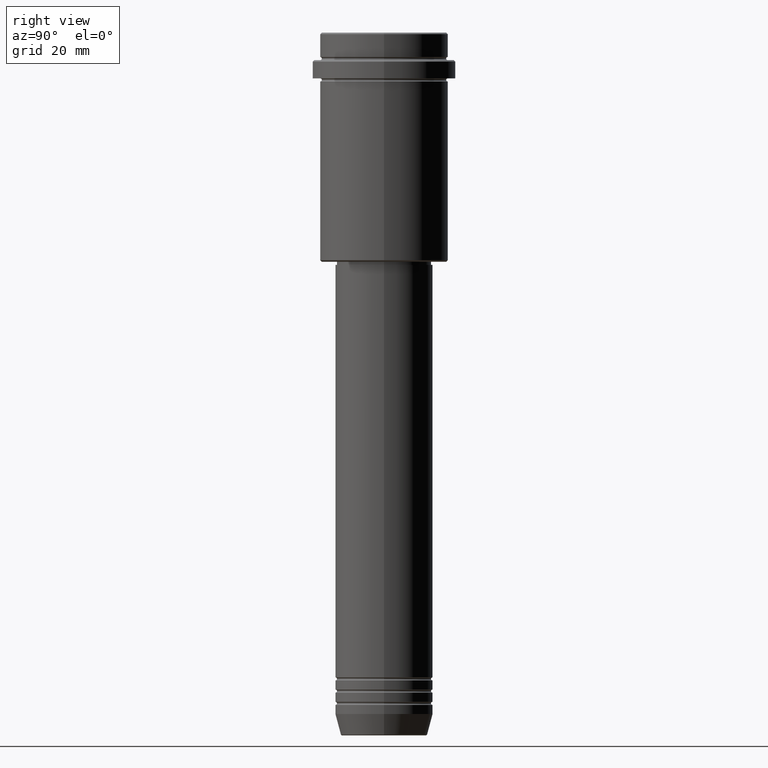
[diagram: clean part render]
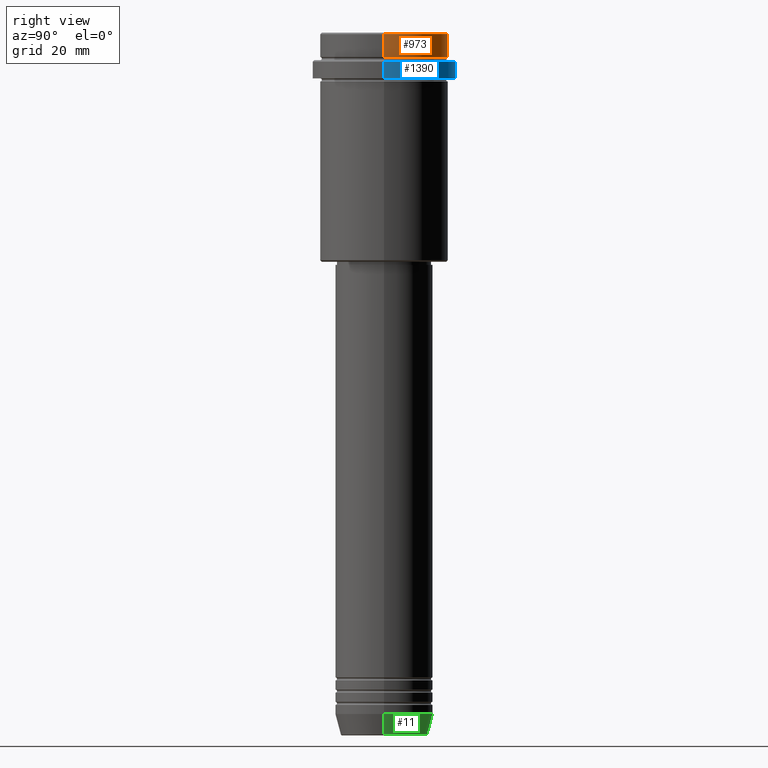
[diagram: same view with three faces highlighted in distinct colors, each labeled with its STEP entity id]
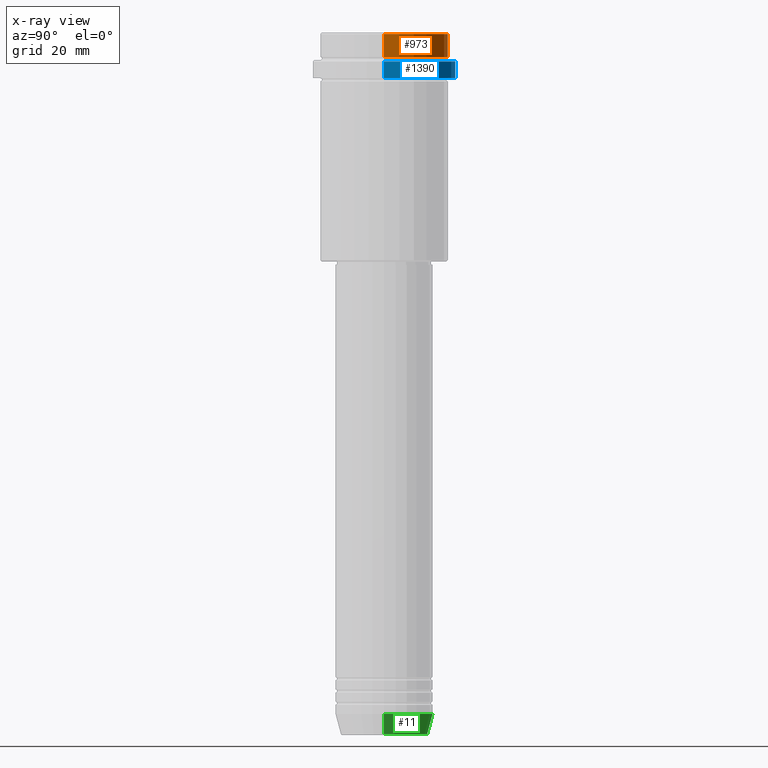
[diagram: x-ray of the same camera — body ghosted, the three highlighted faces saturated]
A machine part, right view with three faces highlighted in distinct colors.
The next image is the same camera in x-ray (body ghosted, the three faces saturated) — at least one of them is partly hidden behind the body in this view.
Their STEP definitions:

[orange] entity #973 — the highlighted cylindrical surface (partial cylindrical patch) has radius 21 mm, axis along (-0, -0, 1).
#72 = ORIENTED_EDGE ( 'NONE', *, *, #907, .T. ) ;
#133 = DIRECTION ( 'NONE',  ( 1.000000000000000000, 0.000000000000000000, 0.000000000000000000 ) ) ;
#146 = DIRECTION ( 'NONE',  ( -0.000000000000000000, -0.000000000000000000, 1.000000000000000000 ) ) ;
#159 = EDGE_CURVE ( 'NONE', #1165, #651, #1196, .T. ) ;
#332 = ORIENTED_EDGE ( 'NONE', *, *, #1033, .F. ) ;
#335 = CARTESIAN_POINT ( 'NONE',  ( 20.99999999999999645, 0.000000000000000000, -0.5000000000000073275 ) ) ;
#357 = DIRECTION ( 'NONE',  ( 1.000000000000000000, 0.000000000000000000, 0.000000000000000000 ) ) ;
#409 = VERTEX_POINT ( 'NONE', #335 ) ;
#460 = CARTESIAN_POINT ( 'NONE',  ( 20.99999999999999645, 0.000000000000000000, -7.999999999999998224 ) ) ;
#464 = CARTESIAN_POINT ( 'NONE',  ( 0.000000000000000000, 0.000000000000000000, 0.000000000000000000 ) ) ;
#475 = DIRECTION ( 'NONE',  ( -0.000000000000000000, -0.000000000000000000, 1.000000000000000000 ) ) ;
#493 = DIRECTION ( 'NONE',  ( 0.000000000000000000, 0.000000000000000000, -1.000000000000000000 ) ) ;
#551 = EDGE_CURVE ( 'NONE', #1316, #409, #902, .T. ) ;
#558 = AXIS2_PLACEMENT_3D ( 'NONE', #1125, #493, #133 ) ;
#559 = VECTOR ( 'NONE', #475, 1000.000000000000000 ) ;
#569 = CARTESIAN_POINT ( 'NONE',  ( -20.99999999999999645, 2.571758278209441267E-15, -7.999999999999998224 ) ) ;
#651 = VERTEX_POINT ( 'NONE', #569 ) ;
#664 = CARTESIAN_POINT ( 'NONE',  ( 20.99999999999999645, 0.000000000000000000, 0.000000000000000000 ) ) ;
#734 = CARTESIAN_POINT ( 'NONE',  ( 0.000000000000000000, 0.000000000000000000, -7.999999999999998224 ) ) ;
#779 = LINE ( 'NONE', #841, #1405 ) ;
#804 = LINE ( 'NONE', #664, #559 ) ;
#841 = CARTESIAN_POINT ( 'NONE',  ( -20.99999999999999645, 2.571758278209441267E-15, 0.000000000000000000 ) ) ;
#887 = ORIENTED_EDGE ( 'NONE', *, *, #159, .T. ) ;
#902 = CIRCLE ( 'NONE', #558, 20.99999999999999645 ) ;
#907 = EDGE_CURVE ( 'NONE', #651, #1316, #779, .T. ) ;
#973 = ADVANCED_FACE ( 'NONE', ( #1121 ), #1022, .T. ) ;
#1022 = CYLINDRICAL_SURFACE ( 'NONE', #1212, 20.99999999999999645 ) ;
#1033 = EDGE_CURVE ( 'NONE', #1165, #409, #804, .T. ) ;
#1038 = DIRECTION ( 'NONE',  ( -0.000000000000000000, -0.000000000000000000, 1.000000000000000000 ) ) ;
#1050 = ORIENTED_EDGE ( 'NONE', *, *, #551, .T. ) ;
#1121 = FACE_OUTER_BOUND ( 'NONE', #1356, .T. ) ;
#1125 = CARTESIAN_POINT ( 'NONE',  ( 0.000000000000000000, 0.000000000000000000, -0.5000000000000073275 ) ) ;
#1162 = DIRECTION ( 'NONE',  ( -0.000000000000000000, -0.000000000000000000, 1.000000000000000000 ) ) ;
#1165 = VERTEX_POINT ( 'NONE', #460 ) ;
#1196 = CIRCLE ( 'NONE', #1210, 20.99999999999999645 ) ;
#1210 = AXIS2_PLACEMENT_3D ( 'NONE', #734, #1162, #1403 ) ;
#1212 = AXIS2_PLACEMENT_3D ( 'NONE', #464, #146, #357 ) ;
#1246 = CARTESIAN_POINT ( 'NONE',  ( -20.99999999999999645, 2.571758278209441267E-15, -0.5000000000000073275 ) ) ;
#1316 = VERTEX_POINT ( 'NONE', #1246 ) ;
#1356 = EDGE_LOOP ( 'NONE', ( #887, #72, #1050, #332 ) ) ;
#1403 = DIRECTION ( 'NONE',  ( 1.000000000000000000, 0.000000000000000000, 0.000000000000000000 ) ) ;
#1405 = VECTOR ( 'NONE', #1038, 1000.000000000000000 ) ;

[blue] entity #1390 — the highlighted cylindrical surface (partial cylindrical patch) has radius 23.5 mm, axis along (-0, -0, 1).
#51 = VECTOR ( 'NONE', #336, 1000.000000000000000 ) ;
#87 = DIRECTION ( 'NONE',  ( 1.000000000000000000, 0.000000000000000000, 0.000000000000000000 ) ) ;
#210 = CYLINDRICAL_SURFACE ( 'NONE', #960, 23.50000000000000000 ) ;
#294 = ORIENTED_EDGE ( 'NONE', *, *, #1228, .T. ) ;
#302 = CARTESIAN_POINT ( 'NONE',  ( 0.000000000000000000, 0.000000000000000000, 0.000000000000000000 ) ) ;
#329 = EDGE_CURVE ( 'NONE', #1392, #1168, #603, .T. ) ;
#336 = DIRECTION ( 'NONE',  ( -0.000000000000000000, -0.000000000000000000, 1.000000000000000000 ) ) ;
#435 = DIRECTION ( 'NONE',  ( -0.000000000000000000, -0.000000000000000000, 1.000000000000000000 ) ) ;
#519 = CIRCLE ( 'NONE', #1288, 23.50000000000000000 ) ;
#540 = FACE_OUTER_BOUND ( 'NONE', #1368, .T. ) ;
#574 = EDGE_CURVE ( 'NONE', #1360, #772, #877, .T. ) ;
#599 = CARTESIAN_POINT ( 'NONE',  ( -23.50000000000000000, 2.877919977996280320E-15, -9.500000000000001776 ) ) ;
#600 = ORIENTED_EDGE ( 'NONE', *, *, #329, .T. ) ;
#603 = LINE ( 'NONE', #940, #1257 ) ;
#670 = ORIENTED_EDGE ( 'NONE', *, *, #574, .F. ) ;
#692 = DIRECTION ( 'NONE',  ( 1.000000000000000000, 0.000000000000000000, 0.000000000000000000 ) ) ;
#756 = DIRECTION ( 'NONE',  ( -0.000000000000000000, -0.000000000000000000, 1.000000000000000000 ) ) ;
#771 = CARTESIAN_POINT ( 'NONE',  ( 0.000000000000000000, 0.000000000000000000, -15.00000000000000178 ) ) ;
#772 = VERTEX_POINT ( 'NONE', #1219 ) ;
#800 = DIRECTION ( 'NONE',  ( -0.000000000000000000, -0.000000000000000000, 1.000000000000000000 ) ) ;
#813 = ORIENTED_EDGE ( 'NONE', *, *, #824, .T. ) ;
#824 = EDGE_CURVE ( 'NONE', #1360, #1392, #1287, .T. ) ;
#877 = LINE ( 'NONE', #990, #51 ) ;
#940 = CARTESIAN_POINT ( 'NONE',  ( -23.50000000000000000, 2.877919977996280320E-15, 0.000000000000000000 ) ) ;
#949 = CARTESIAN_POINT ( 'NONE',  ( 0.000000000000000000, 0.000000000000000000, -9.500000000000001776 ) ) ;
#960 = AXIS2_PLACEMENT_3D ( 'NONE', #302, #435, #692 ) ;
#990 = CARTESIAN_POINT ( 'NONE',  ( 23.50000000000000000, 0.000000000000000000, 0.000000000000000000 ) ) ;
#1070 = DIRECTION ( 'NONE',  ( 0.000000000000000000, 0.000000000000000000, -1.000000000000000000 ) ) ;
#1075 = CARTESIAN_POINT ( 'NONE',  ( 23.50000000000000355, 0.000000000000000000, -15.00000000000000178 ) ) ;
#1112 = AXIS2_PLACEMENT_3D ( 'NONE', #771, #756, #87 ) ;
#1168 = VERTEX_POINT ( 'NONE', #599 ) ;
#1219 = CARTESIAN_POINT ( 'NONE',  ( 23.50000000000000000, 0.000000000000000000, -9.500000000000001776 ) ) ;
#1228 = EDGE_CURVE ( 'NONE', #1168, #772, #519, .T. ) ;
#1252 = DIRECTION ( 'NONE',  ( 1.000000000000000000, 0.000000000000000000, 0.000000000000000000 ) ) ;
#1257 = VECTOR ( 'NONE', #800, 1000.000000000000000 ) ;
#1287 = CIRCLE ( 'NONE', #1112, 23.50000000000000355 ) ;
#1288 = AXIS2_PLACEMENT_3D ( 'NONE', #949, #1070, #1252 ) ;
#1295 = CARTESIAN_POINT ( 'NONE',  ( -23.50000000000000711, 2.877919977996281109E-15, -15.00000000000000178 ) ) ;
#1360 = VERTEX_POINT ( 'NONE', #1075 ) ;
#1368 = EDGE_LOOP ( 'NONE', ( #813, #600, #294, #670 ) ) ;
#1390 = ADVANCED_FACE ( 'NONE', ( #540 ), #210, .T. ) ;
#1392 = VERTEX_POINT ( 'NONE', #1295 ) ;

[green] entity #11 — the highlighted conical surface has half-angle 15 deg.
#11 = ADVANCED_FACE ( 'NONE', ( #514 ), #472, .T. ) ;
#23 = CARTESIAN_POINT ( 'NONE',  ( 0.000000000000000000, 0.000000000000000000, -223.0000000000000284 ) ) ;
#38 = VERTEX_POINT ( 'NONE', #70 ) ;
#43 = CARTESIAN_POINT ( 'NONE',  ( 16.00000000000000000, 0.000000000000000000, -223.0000000000000284 ) ) ;
#46 = DIRECTION ( 'NONE',  ( -0.000000000000000000, -0.000000000000000000, 1.000000000000000000 ) ) ;
#47 = VERTEX_POINT ( 'NONE', #328 ) ;
#69 = ORIENTED_EDGE ( 'NONE', *, *, #117, .T. ) ;
#70 = CARTESIAN_POINT ( 'NONE',  ( -16.00000000000000000, 1.959434878635765131E-15, -223.0000000000000284 ) ) ;
#117 = EDGE_CURVE ( 'NONE', #47, #38, #1201, .T. ) ;
#178 = CARTESIAN_POINT ( 'NONE',  ( 0.000000000000000000, 0.000000000000000000, -229.6294095225512990 ) ) ;
#212 = DIRECTION ( 'NONE',  ( -0.2588190451025205174, 3.169619151431761243E-17, 0.9659258262890684232 ) ) ;
#253 = VECTOR ( 'NONE', #212, 1000.000000000000114 ) ;
#279 = AXIS2_PLACEMENT_3D ( 'NONE', #178, #627, #406 ) ;
#310 = CARTESIAN_POINT ( 'NONE',  ( 14.22365507213720548, 0.000000000000000000, -229.6294095225512990 ) ) ;
#328 = CARTESIAN_POINT ( 'NONE',  ( -14.22365507213720548, 1.850665122131324520E-15, -229.6294095225512990 ) ) ;
#361 = DIRECTION ( 'NONE',  ( 1.000000000000000000, 0.000000000000000000, 0.000000000000000000 ) ) ;
#406 = DIRECTION ( 'NONE',  ( 1.000000000000000000, 0.000000000000000000, 0.000000000000000000 ) ) ;
#472 = CONICAL_SURFACE ( 'NONE', #1384, 16.00000000000000000, 0.2617993877991491303 ) ;
#508 = CARTESIAN_POINT ( 'NONE',  ( 0.000000000000000000, 0.000000000000000000, -223.0000000000000284 ) ) ;
#512 = EDGE_CURVE ( 'NONE', #1412, #1031, #712, .T. ) ;
#514 = FACE_OUTER_BOUND ( 'NONE', #1174, .T. ) ;
#554 = CARTESIAN_POINT ( 'NONE',  ( 16.00000000000000000, 0.000000000000000000, -223.0000000000000284 ) ) ;
#627 = DIRECTION ( 'NONE',  ( -0.000000000000000000, -0.000000000000000000, 1.000000000000000000 ) ) ;
#712 = LINE ( 'NONE', #43, #885 ) ;
#716 = DIRECTION ( 'NONE',  ( -0.000000000000000000, -0.000000000000000000, 1.000000000000000000 ) ) ;
#729 = CIRCLE ( 'NONE', #931, 16.00000000000000000 ) ;
#791 = DIRECTION ( 'NONE',  ( 0.2588190451025205174, 0.000000000000000000, 0.9659258262890684232 ) ) ;
#885 = VECTOR ( 'NONE', #791, 1000.000000000000114 ) ;
#893 = EDGE_CURVE ( 'NONE', #1412, #47, #1383, .T. ) ;
#931 = AXIS2_PLACEMENT_3D ( 'NONE', #23, #46, #361 ) ;
#971 = ORIENTED_EDGE ( 'NONE', *, *, #893, .T. ) ;
#976 = CARTESIAN_POINT ( 'NONE',  ( -16.00000000000000000, 1.959434878635765131E-15, -223.0000000000000284 ) ) ;
#1031 = VERTEX_POINT ( 'NONE', #554 ) ;
#1043 = DIRECTION ( 'NONE',  ( 1.000000000000000000, 0.000000000000000000, 0.000000000000000000 ) ) ;
#1102 = EDGE_CURVE ( 'NONE', #1031, #38, #729, .T. ) ;
#1173 = ORIENTED_EDGE ( 'NONE', *, *, #512, .F. ) ;
#1174 = EDGE_LOOP ( 'NONE', ( #971, #69, #1204, #1173 ) ) ;
#1201 = LINE ( 'NONE', #976, #253 ) ;
#1204 = ORIENTED_EDGE ( 'NONE', *, *, #1102, .F. ) ;
#1383 = CIRCLE ( 'NONE', #279, 14.22365507213720548 ) ;
#1384 = AXIS2_PLACEMENT_3D ( 'NONE', #508, #716, #1043 ) ;
#1412 = VERTEX_POINT ( 'NONE', #310 ) ;